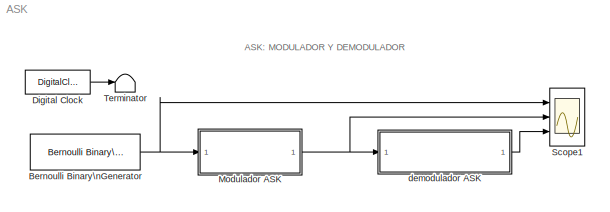
MODEL ASK
KIND model
BLOCK [Reference] Bernoulli Binary\nGenerator  REF=commrandsrc2/Bernoulli Binary\nGenerator
  DialogController = commDDGCreate
  DialogControllerArgs = DataTag0
  FunctionWithSeparateData = off
  P = 0.4
  Ports = [0, 1]
  RTWMemSecDataConstants = Inherit from model
  RTWMemSecDataInternal = Inherit from model
  RTWMemSecDataParameters = Inherit from model
  RTWMemSecFuncExecute = Inherit from model
  RTWMemSecFuncInitTerm = Inherit from model
  ShowPortLabels = FromPortIcon
  SourceBlock = commrandsrc2/Bernoulli Binary\nGenerator
  SourceType = Bernoulli Binary Generator
  SystemSampleTime = -1
  Ts = 5
  frameBased = off
  orient = off
  outDataType = double
  sampPerFrame = 1
  seed = 81
BLOCK [DigitalClock] Digital Clock
  SampleTime = 0.001
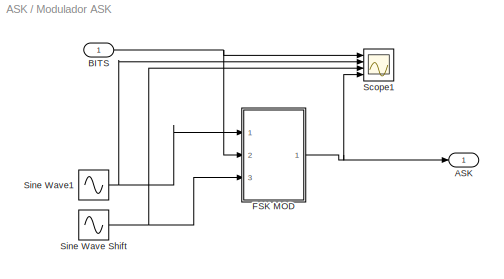
BLOCK [SubSystem] Modulador ASK
  FunctionWithSeparateData = off
  MaskHideContents = off
  MinAlgLoopOccurrences = off
  Opaque = off
  Ports = [1, 1]
  PropExecContextOutsideSubsystem = off
  RTWSystemCode = Auto
  RequestExecContextInheritance = off
BLOCK [Outport] Modulador ASK/ASK
  IconDisplay = Port number
  OutDataType = sfix(16)
  OutScaling = 2^0
BLOCK [Inport] Modulador ASK/BITS
  IconDisplay = Port number
  OutDataType = sfix(16)
  OutScaling = 2^0
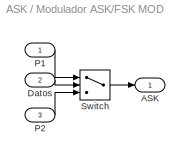
BLOCK [SubSystem] Modulador ASK/FSK MOD
  FunctionWithSeparateData = off
  MaskHideContents = off
  MinAlgLoopOccurrences = off
  Opaque = off
  Ports = [3, 1]
  PropExecContextOutsideSubsystem = off
  RTWSystemCode = Auto
  RequestExecContextInheritance = off
BLOCK [Outport] Modulador ASK/FSK MOD/ASK
  IconDisplay = Port number
  OutDataType = sfix(16)
  OutScaling = 2^0
BLOCK [Inport] Modulador ASK/FSK MOD/Datos
  IconDisplay = Port number
  OutDataType = sfix(16)
  OutScaling = 2^0
  Port = 2
BLOCK [Inport] Modulador ASK/FSK MOD/P1
  IconDisplay = Port number
  OutDataType = sfix(16)
  OutScaling = 2^0
BLOCK [Inport] Modulador ASK/FSK MOD/P2
  IconDisplay = Port number
  OutDataType = sfix(16)
  OutScaling = 2^0
  Port = 3
BLOCK [Switch] Modulador ASK/FSK MOD/Switch
  InputSameDT = off
  SaturateOnIntegerOverflow = off
  Threshold = 0.5
BLOCK [Scope] Modulador ASK/Scope1
  DataFormat = StructureWithTime
  Floating = off
  NumInputPorts = 4
  Ports = [4]
  SampleTime = 0
  SaveName = ScopeData1
  YMax = 2~3~3~3
  YMin = -2~-3~-3~-3
BLOCK [Sin] Modulador ASK/Sine Wave Shift
  Amplitude = 0.5
  Frequency = 2*10*pi
  Phase = -pi
  Ports = [0, 1]
  SampleTime = 1/20
  Samples = 50
  SineType = Sample based
BLOCK [Sin] Modulador ASK/Sine Wave1
  Amplitude = 2
  Frequency = 2*10*pi
  Ports = [0, 1]
  SampleTime = 1/20
  Samples = 50
  SineType = Sample based
BLOCK [Scope] Scope1
  DataFormat = StructureWithTime
  Floating = off
  LimitDataPoints = off
  NumInputPorts = 3
  Ports = [3]
  SampleTime = 0
  SaveName = ScopeData3
  YMax = 5~5~5
  YMin = -5~-5~-5
BLOCK [Terminator] Terminator
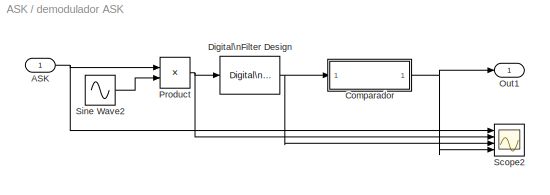
BLOCK [SubSystem] demodulador ASK
  FunctionWithSeparateData = off
  MaskHideContents = off
  MinAlgLoopOccurrences = off
  Opaque = off
  Ports = [1, 1]
  PropExecContextOutsideSubsystem = off
  RTWSystemCode = Auto
  RequestExecContextInheritance = off
BLOCK [Inport] demodulador ASK/ASK
  IconDisplay = Port number
  OutDataType = sfix(16)
  OutScaling = 2^0
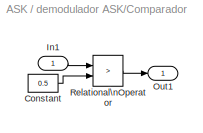
BLOCK [SubSystem] demodulador ASK/Comparador
  FunctionWithSeparateData = off
  MaskHideContents = off
  MinAlgLoopOccurrences = off
  Opaque = off
  Ports = [1, 1]
  PropExecContextOutsideSubsystem = off
  RTWSystemCode = Auto
  RequestExecContextInheritance = off
BLOCK [Constant] demodulador ASK/Comparador/Constant
  OutDataType = sfix(16)
  OutScaling = 2^0
  Value = 0.5
BLOCK [Inport] demodulador ASK/Comparador/In1
  IconDisplay = Port number
  OutDataType = sfix(16)
  OutScaling = 2^0
BLOCK [Outport] demodulador ASK/Comparador/Out1
  IconDisplay = Port number
  OutDataType = sfix(16)
  OutScaling = 2^0
BLOCK [RelationalOperator] demodulador ASK/Comparador/Relational\nOperator
  InputSameDT = off
  LogicOutDataTypeMode = boolean
  Operator = >
  OutDataTypeStr = boolean
BLOCK [Reference] demodulador ASK/Digital\nFilter Design  REF=dsparch4/Digital\nFilter Design
  FunctionWithSeparateData = off
  Ports = [1, 1]
  RTWMemSecDataConstants = Inherit from model
  RTWMemSecDataInternal = Inherit from model
  RTWMemSecDataParameters = Inherit from model
  RTWMemSecFuncExecute = Inherit from model
  RTWMemSecFuncInitTerm = Inherit from model
  ShowPortLabels = FromPortIcon
  SourceBlock = dsparch4/Digital\nFilter Design
  SourceType = Digital Filter Design
  SystemSampleTime = -1
  UserData = DataTag1
  UserDataPersistent = on
  mwdsp_browser_bugfix_var = off
BLOCK [Outport] demodulador ASK/Out1
  IconDisplay = Port number
  OutDataType = sfix(16)
  OutScaling = 2^0
BLOCK [Product] demodulador ASK/Product
  InputSameDT = off
  OutDataType = sfix(16)
  OutDataTypeMode = Inherit via internal rule
  OutDataTypeStr = Inherit: Inherit via internal rule
  OutScaling = 2^0
  Ports = [2, 1]
  SaturateOnIntegerOverflow = off
BLOCK [Scope] demodulador ASK/Scope2
  DataFormat = StructureWithTime
  Floating = off
  NumInputPorts = 4
  Ports = [4]
  SampleTime = 0
  YMax = 2~3~3~5
  YMin = -2~-3~-3~-5
BLOCK [Sin] demodulador ASK/Sine Wave2
  Frequency = 2*10*pi
  Ports = [0, 1]
  SampleTime = 1/20
  Samples = 50
  SineType = Sample based
ANNOTATION (root): ASK: MODULADOR Y DEMODULADOR
NET Bernoulli Binary\nGenerator:1 -> Modulador ASK:1, Scope1:1
LINE Digital Clock:1 -> Terminator:1
NET Modulador ASK/BITS:1 -> Modulador ASK/FSK MOD:2, Modulador ASK/Scope1:1
LINE Modulador ASK/FSK MOD/Datos:1 -> Modulador ASK/FSK MOD/Switch:2
LINE Modulador ASK/FSK MOD/P1:1 -> Modulador ASK/FSK MOD/Switch:1
LINE Modulador ASK/FSK MOD/P2:1 -> Modulador ASK/FSK MOD/Switch:3
LINE Modulador ASK/FSK MOD/Switch:1 -> Modulador ASK/FSK MOD/ASK:1
NET Modulador ASK/FSK MOD:1 -> Modulador ASK/ASK:1, Modulador ASK/Scope1:4
NET Modulador ASK/Sine Wave Shift:1 -> Modulador ASK/FSK MOD:3, Modulador ASK/Scope1:3
NET Modulador ASK/Sine Wave1:1 -> Modulador ASK/FSK MOD:1, Modulador ASK/Scope1:2
NET Modulador ASK:1 -> Scope1:2, demodulador ASK:1
NET demodulador ASK/ASK:1 -> demodulador ASK/Product:1, demodulador ASK/Scope2:1
LINE demodulador ASK/Comparador/Constant:1 -> demodulador ASK/Comparador/Relational\nOperator:2
LINE demodulador ASK/Comparador/In1:1 -> demodulador ASK/Comparador/Relational\nOperator:1
LINE demodulador ASK/Comparador/Relational\nOperator:1 -> demodulador ASK/Comparador/Out1:1
NET demodulador ASK/Comparador:1 -> demodulador ASK/Out1:1, demodulador ASK/Scope2:4
NET demodulador ASK/Digital\nFilter Design:1 -> demodulador ASK/Comparador:1, demodulador ASK/Scope2:3
NET demodulador ASK/Product:1 -> demodulador ASK/Digital\nFilter Design:1, demodulador ASK/Scope2:2
LINE demodulador ASK/Sine Wave2:1 -> demodulador ASK/Product:2
LINE demodulador ASK:1 -> Scope1:3
note: NET lines group one-source signal fan-out (src -> all destinations, sorted); 1:1 wires keep LINE
